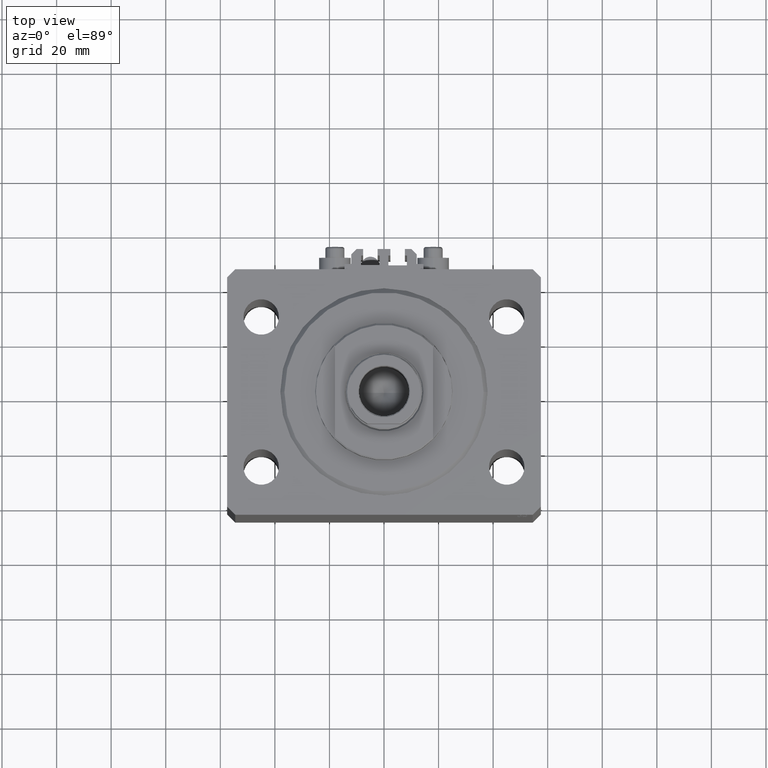
[diagram: clean part render]
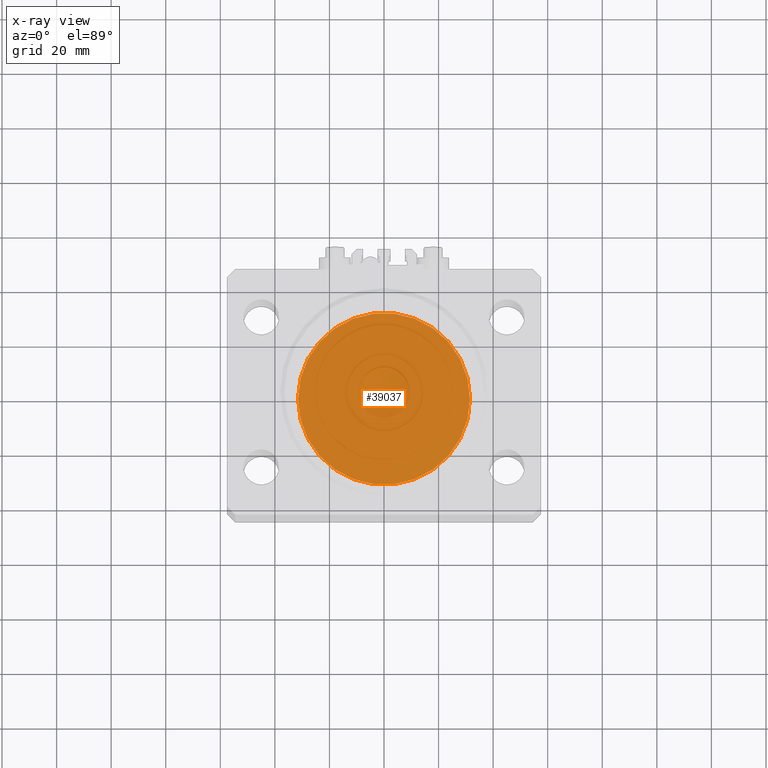
[diagram: x-ray — body ghosted, one internal face saturated and labeled with its STEP entity id]
A machine part, top view, then the same camera in x-ray: the body is ghosted and one INTERNAL B-rep face — a face not visible from any outside direction — is saturated and labeled: STEP entity #39037.
In plain terms, the highlighted planar face has unit normal (0, 0, 1).
Its self-contained STEP definition (entity closure, byte-faithful):
#528 = DIRECTION ( 'NONE',  ( 0.000000000000000000, 0.000000000000000000, 1.000000000000000000 ) ) ;
#956 = EDGE_CURVE ( 'NONE', #20208, #8502, #19071, .T. ) ;
#2069 = CIRCLE ( 'NONE', #24615, 31.50000000000000000 ) ;
#3130 = EDGE_LOOP ( 'NONE', ( #14826, #6170 ) ) ;
#6170 = ORIENTED_EDGE ( 'NONE', *, *, #31322, .F. ) ;
#6682 = CARTESIAN_POINT ( 'NONE',  ( 31.50000000000000000, 3.857637417314162689E-15, 0.000000000000000000 ) ) ;
#8489 = DIRECTION ( 'NONE',  ( 1.000000000000000000, 0.000000000000000000, -0.000000000000000000 ) ) ;
#8502 = VERTEX_POINT ( 'NONE', #6682 ) ;
#8722 = FACE_OUTER_BOUND ( 'NONE', #3130, .T. ) ;
#14826 = ORIENTED_EDGE ( 'NONE', *, *, #956, .F. ) ;
#19071 = CIRCLE ( 'NONE', #33854, 31.50000000000000000 ) ;
#19092 = DIRECTION ( 'NONE',  ( 0.000000000000000000, 0.000000000000000000, 1.000000000000000000 ) ) ;
#19589 = CARTESIAN_POINT ( 'NONE',  ( 0.000000000000000000, 0.000000000000000000, 0.000000000000000000 ) ) ;
#20095 = AXIS2_PLACEMENT_3D ( 'NONE', #42315, #45727, #8489 ) ;
#20208 = VERTEX_POINT ( 'NONE', #44514 ) ;
#24615 = AXIS2_PLACEMENT_3D ( 'NONE', #29993, #528, #38012 ) ;
#26656 = DIRECTION ( 'NONE',  ( 1.000000000000000000, 0.000000000000000000, 0.000000000000000000 ) ) ;
#27247 = PLANE ( 'NONE',  #20095 ) ;
#29993 = CARTESIAN_POINT ( 'NONE',  ( 0.000000000000000000, 0.000000000000000000, 0.000000000000000000 ) ) ;
#31322 = EDGE_CURVE ( 'NONE', #8502, #20208, #2069, .T. ) ;
#33854 = AXIS2_PLACEMENT_3D ( 'NONE', #19589, #19092, #26656 ) ;
#38012 = DIRECTION ( 'NONE',  ( 1.000000000000000000, 0.000000000000000000, 0.000000000000000000 ) ) ;
#39037 = ADVANCED_FACE ( 'NONE', ( #8722 ), #27247, .F. ) ;
#42315 = CARTESIAN_POINT ( 'NONE',  ( 0.000000000000000000, 0.000000000000000000, 0.000000000000000000 ) ) ;
#44514 = CARTESIAN_POINT ( 'NONE',  ( -31.50000000000000000, 0.000000000000000000, 0.000000000000000000 ) ) ;
#45727 = DIRECTION ( 'NONE',  ( 0.000000000000000000, 0.000000000000000000, 1.000000000000000000 ) ) ;